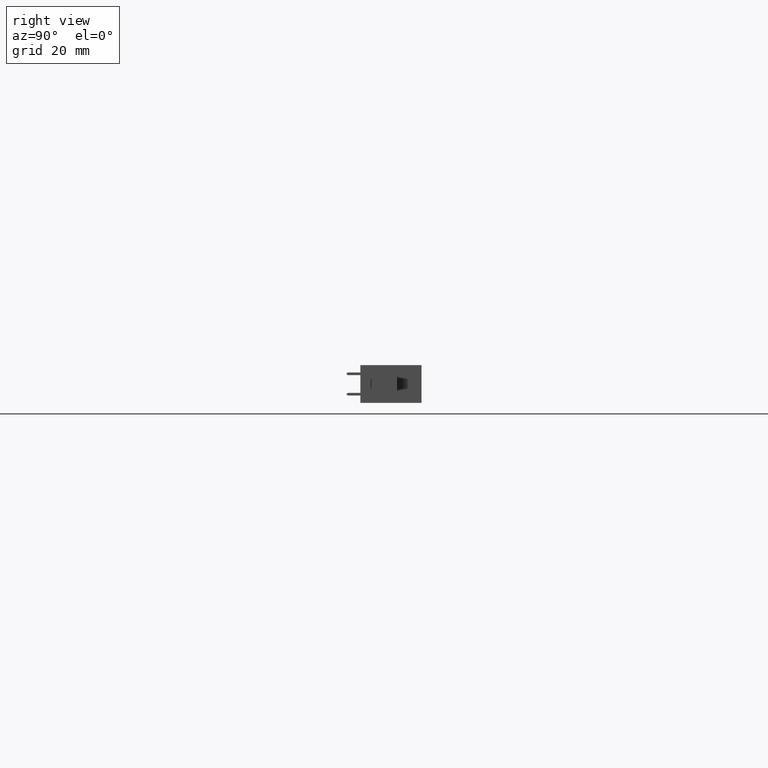
[diagram: clean part render]
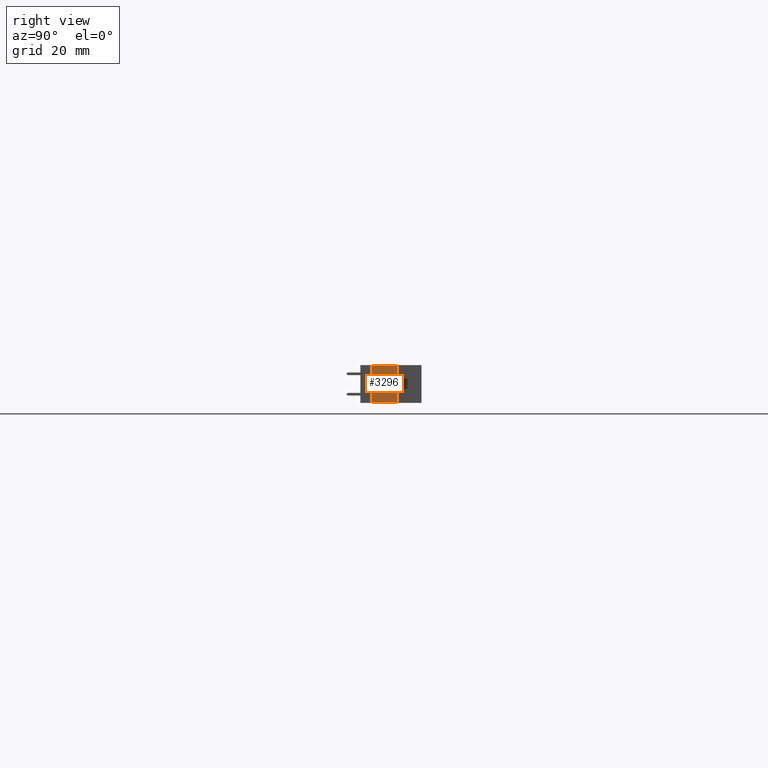
[diagram: same view with one face highlighted and labeled with its STEP entity id]
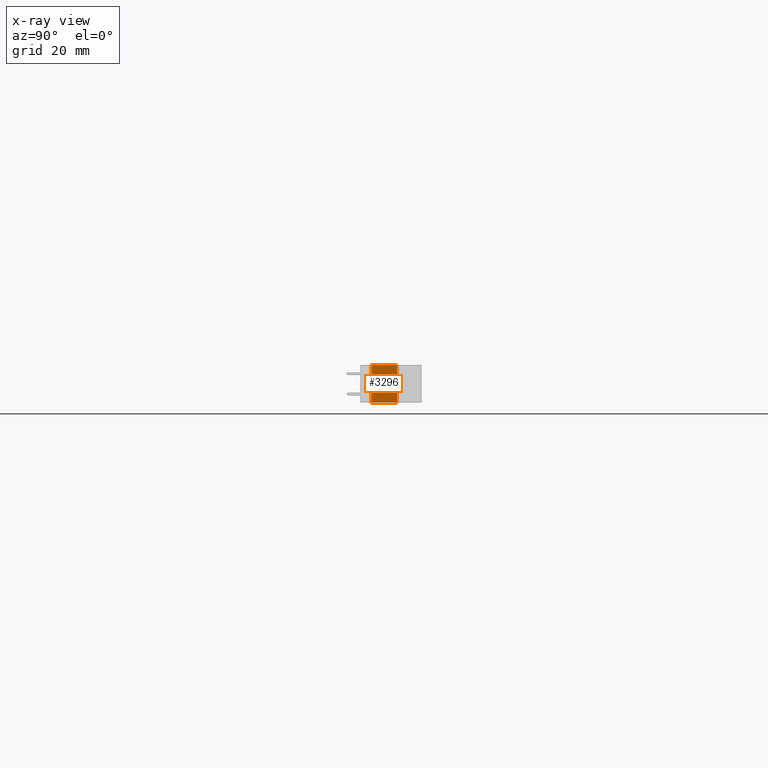
[diagram: x-ray of the same camera — body ghosted, the highlighted face saturated]
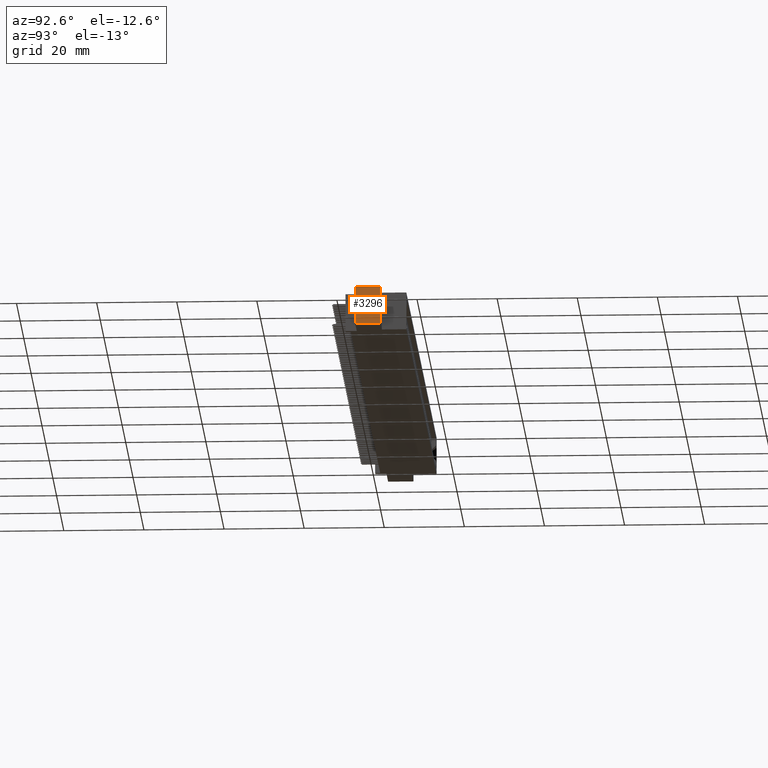
[diagram: same view with one face highlighted and labeled with its STEP entity id]
A machine part, right view. The second image highlights one B-rep face of the part: STEP entity #3296.
The next image is the same camera in x-ray: the body ghosted, the highlighted face saturated — about 0% of this face is hidden behind the body in this view.
A second angle (auxiliary view) of the same face is appended — the face is thin or edge-on in the first view.
In plain terms, the highlighted planar face has unit normal (-1, 0, 0).
Its self-contained STEP definition (entity closure, byte-faithful):
#3296 = ADVANCED_FACE ( 'NONE', ( #24021 ), #25852, .F. ) ;
#3640 = ORIENTED_EDGE ( 'NONE', *, *, #27214, .F. ) ;
#4624 = VERTEX_POINT ( 'NONE', #32736 ) ;
#5529 = EDGE_CURVE ( 'NONE', #44186, #4624, #34821, .T. ) ;
#5721 = CARTESIAN_POINT ( 'NONE',  ( 7.135000000000000700, 0.1100000000000000000, -0.3699999999999991100 ) ) ;
#5843 = DIRECTION ( 'NONE',  ( -0.0000000000000000000, -1.000000000000000000, -0.0000000000000000000 ) ) ;
#6345 = VECTOR ( 'NONE', #41520, 39.37007874015748100 ) ;
#7787 = CARTESIAN_POINT ( 'NONE',  ( 7.135000000000000700, 0.3599999999999999900, 0.0000000000000000000 ) ) ;
#8785 = LINE ( 'NONE', #42705, #27246 ) ;
#11588 = ORIENTED_EDGE ( 'NONE', *, *, #44938, .F. ) ;
#11904 = CARTESIAN_POINT ( 'NONE',  ( 7.135000000000000700, 0.5999999999999999800, -0.3700000000000000000 ) ) ;
#15144 = ORIENTED_EDGE ( 'NONE', *, *, #5529, .F. ) ;
#17646 = DIRECTION ( 'NONE',  ( -0.0000000000000000000, -0.0000000000000000000, 1.000000000000000000 ) ) ;
#19798 = EDGE_LOOP ( 'NONE', ( #3640, #11588, #15144, #24218 ) ) ;
#20462 = VERTEX_POINT ( 'NONE', #41431 ) ;
#22112 = CARTESIAN_POINT ( 'NONE',  ( 7.135000000000000700, 0.5999999999999999800, 0.0000000000000000000 ) ) ;
#24021 = FACE_OUTER_BOUND ( 'NONE', #19798, .T. ) ;
#24218 = ORIENTED_EDGE ( 'NONE', *, *, #35281, .T. ) ;
#24786 = LINE ( 'NONE', #11904, #6345 ) ;
#25852 = PLANE ( 'NONE',  #39614 ) ;
#26628 = DIRECTION ( 'NONE',  ( 0.0000000000000000000, 0.0000000000000000000, -1.000000000000000000 ) ) ;
#27214 = EDGE_CURVE ( 'NONE', #45726, #20462, #31436, .T. ) ;
#27246 = VECTOR ( 'NONE', #5843, 39.37007874015748100 ) ;
#29581 = DIRECTION ( 'NONE',  ( 0.0000000000000000000, 0.0000000000000000000, 1.000000000000000000 ) ) ;
#31436 = LINE ( 'NONE', #47330, #40123 ) ;
#32736 = CARTESIAN_POINT ( 'NONE',  ( 7.135000000000000700, 0.3600000000000000400, -0.3700000000000000000 ) ) ;
#34821 = LINE ( 'NONE', #37809, #44705 ) ;
#35281 = EDGE_CURVE ( 'NONE', #44186, #20462, #8785, .T. ) ;
#37809 = CARTESIAN_POINT ( 'NONE',  ( 7.135000000000000700, 0.3599999999999999900, 0.0000000000000000000 ) ) ;
#39614 = AXIS2_PLACEMENT_3D ( 'NONE', #22112, #47933, #29581 ) ;
#40123 = VECTOR ( 'NONE', #17646, 39.37007874015748100 ) ;
#41431 = CARTESIAN_POINT ( 'NONE',  ( 7.135000000000000700, 0.1100000000000000000, 8.737854911916364900E-016 ) ) ;
#41520 = DIRECTION ( 'NONE',  ( -0.0000000000000000000, -1.000000000000000000, -0.0000000000000000000 ) ) ;
#42705 = CARTESIAN_POINT ( 'NONE',  ( 7.135000000000000700, 0.5999999999999999800, 0.0000000000000000000 ) ) ;
#44186 = VERTEX_POINT ( 'NONE', #7787 ) ;
#44705 = VECTOR ( 'NONE', #26628, 39.37007874015748100 ) ;
#44938 = EDGE_CURVE ( 'NONE', #4624, #45726, #24786, .T. ) ;
#45726 = VERTEX_POINT ( 'NONE', #5721 ) ;
#47330 = CARTESIAN_POINT ( 'NONE',  ( 7.135000000000000700, 0.1100000000000000000, 8.737854911916364900E-016 ) ) ;
#47933 = DIRECTION ( 'NONE',  ( -1.000000000000000000, 0.0000000000000000000, 0.0000000000000000000 ) ) ;